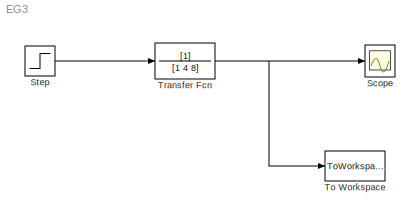
MODEL EG3
KIND model
BLOCK [Scope] Scope
  Floating = off
  LegendLocations = 0.89121     0.91519    0.086637     0.02999
  NumInputPorts = 1
  Ports = [1]
  SID = 3
  ShowLegends = on
  TimeRange = 10
BLOCK [Step] Step
  After = magnitude
  SID = 2
  SampleTime = 0
BLOCK [ToWorkspace] To Workspace
  FixptAsFi = on
  MaxDataPoints = inf
  Ports = [1]
  SID = 4
  SampleTime = -1
  Save2DSignal = 2-D array (concatenate along first dimension)
  VariableName = simout
BLOCK [TransferFcn] Transfer Fcn
  Denominator = [1 4 8]
  SID = 1
LINE Step:1 -> Transfer Fcn:1
NET Transfer Fcn:1 -> Scope:1, To Workspace:1
note: NET lines group one-source signal fan-out (src -> all destinations, sorted); 1:1 wires keep LINE
